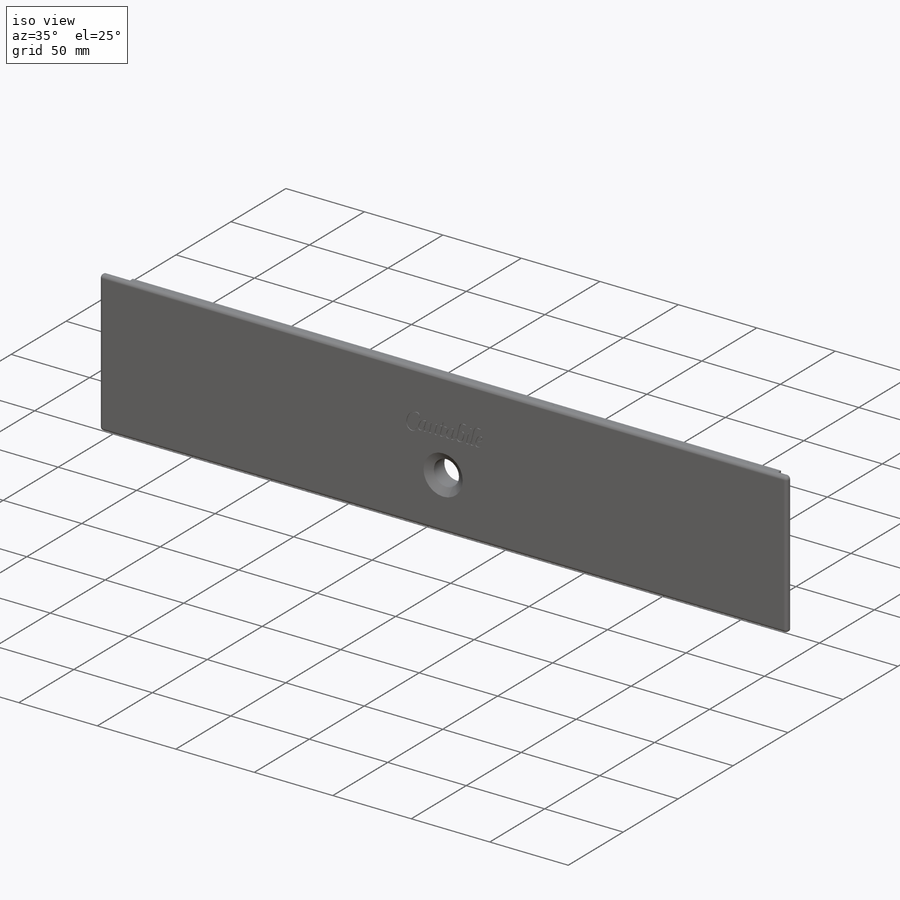
[diagram: iso view]
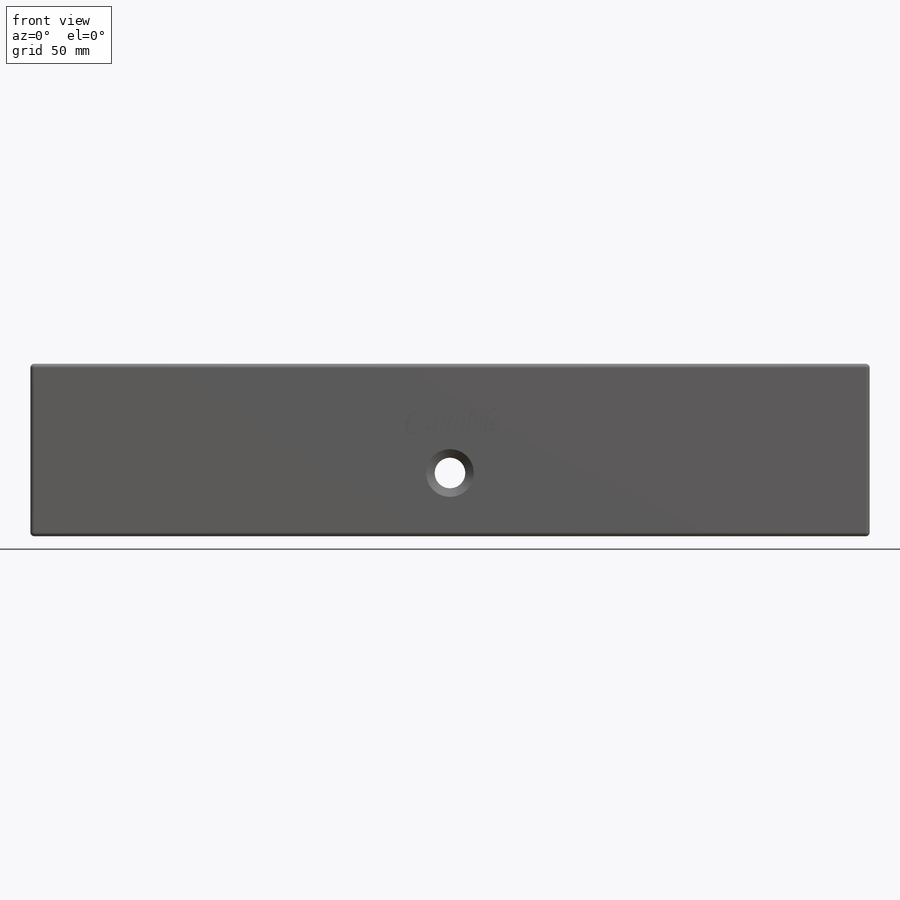
[diagram: front view]
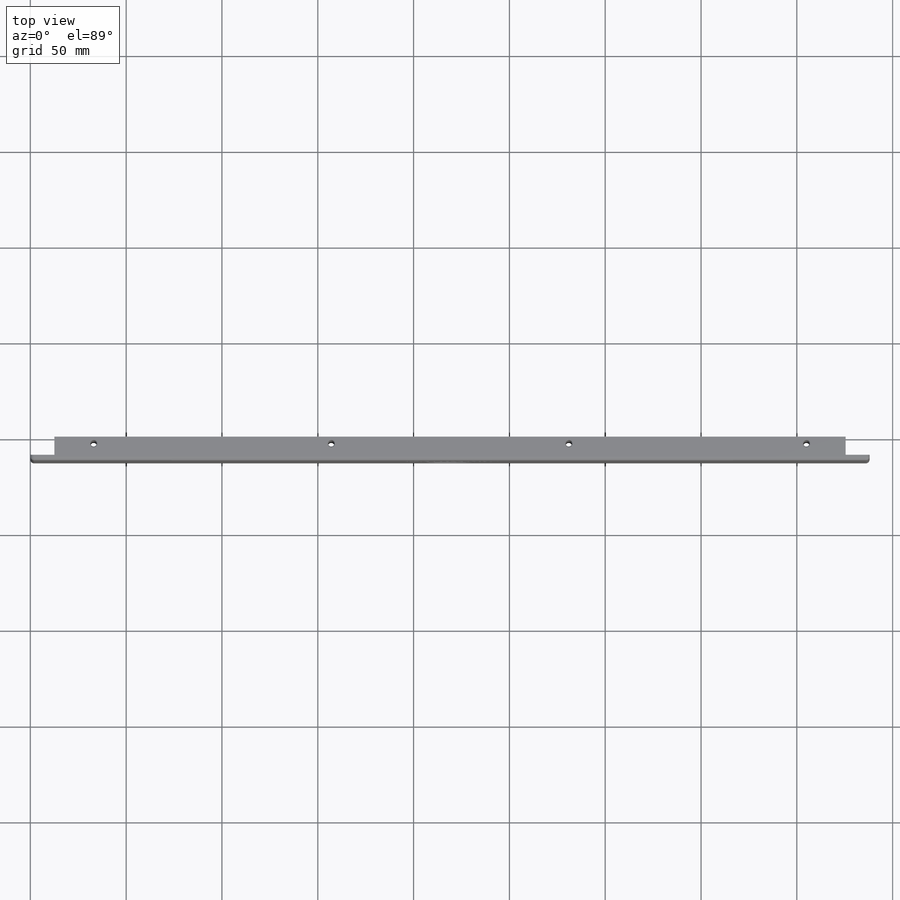
[diagram: top view]
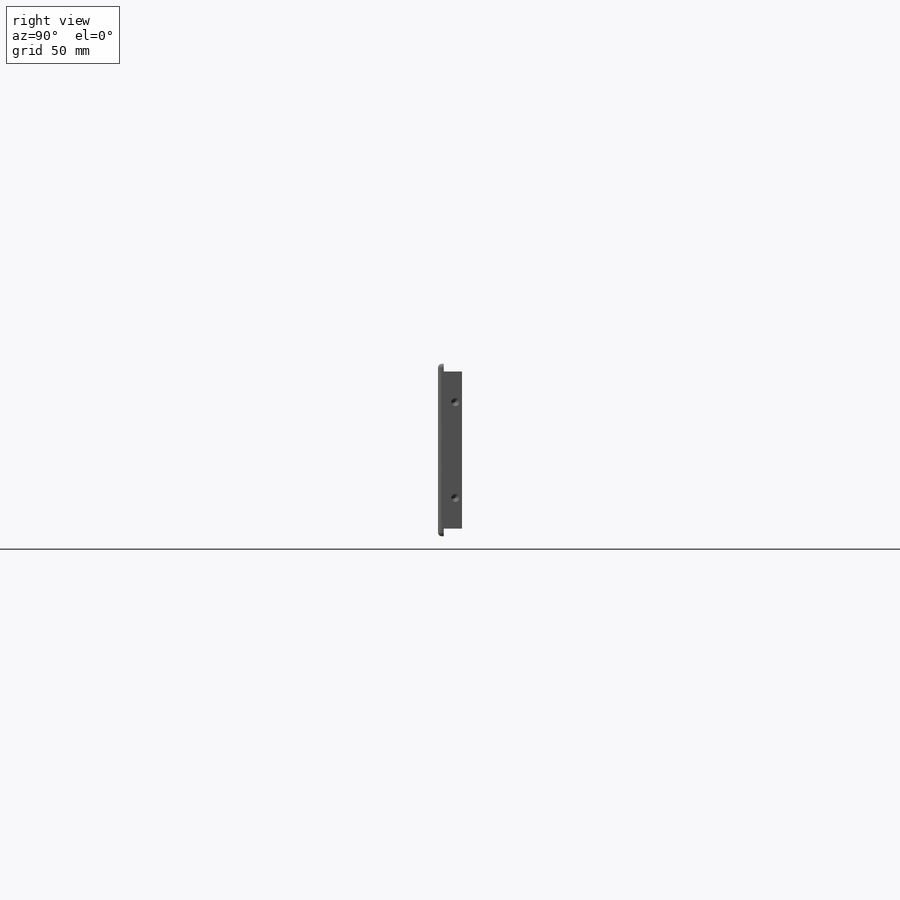
[diagram: right view]
SOLIDWORKS PART (.sldprt)
format: sldprt  version: not decoded by parser v0  size: 1,206,272 bytes
history: native  units: mm
features: sketch x12, thread x8, hole x4, plane x3, cut_extrude x3, fillet x2, material x1, extrude x1 (+8 scaffold rows collapsed)
feature tree (42):
  scaffold x8  (default folders/planes/origin — collapsed)
  material  "6061 合金"
  plane  "前基準面"
  plane  "上基準面"
  plane  "右基準面"
  sketch  "草圖1"  dims[D1=90.0mm D2=438.0mm]
  extrude  "填料-伸長1"  Depth=12.5mm
  sketch  "草圖2"  dims[c1.D1=50.0mm c1.D2=50.0mm c2.D2=90.0deg c3.D2=50.0mm c4.D2=90.0deg c5.D2=50.0mm c6.D2=90.0deg c7.D2=50.0mm c7.D1=25.0mm c8.D2=35.0mm]
  cut_extrude  "除料-伸長1"  Depth=0.5mm
  hole  "開關圓孔"  [1 undecoded]
  sketch  "草圖4"  dims[D1=33.0mm D2=219.0mm]
  sketch  "草圖3"  dims[hole-wizard template sketch: 54 standard entries collapsed; hole parameters kept: c17.貫穿孔直徑=16.0mm c17.貫穿孔深度=12.5mm c17.近端錐孔直徑=25.0mm c17.D4=~3.666174mm c17.近端錐孔角度=112.6deg]
  sketch  "草圖6"  dims[D1=3.0mm D2=3.0mm D3=4.0mm D4=4.0mm]
  sketch  "草圖5"  dims[D1=12.5mm D2=3.0mm D3=3.0mm D4=12.5mm]
  cut_extrude  "除料-伸長2"  [1 undecoded]
  cut_extrude  "除料-伸長3"  [1 undecoded]
  fillet  "圓角1"  Radius=2mm
  fillet  "圓角2"  Radius=2mm
  hole  "M4 螺紋孔1"  [1 undecoded]
  sketch  "草圖8"  dims[D1=20.5mm D2=124.0mm D3=124.0mm D4=124.0mm D5=6.0mm D6=20.0mm]
  thread  "鑽孔螺紋1"  Diameter=4mm  [1 undecoded]
  thread  "鑽孔螺紋2"  Diameter=4mm  [1 undecoded]
  thread  "鑽孔螺紋3"  Diameter=4mm  [1 undecoded]
  thread  "鑽孔螺紋4"  Diameter=4mm  [1 undecoded]
  sketch  "草圖7"  dims[hole-wizard template sketch: 54 standard entries collapsed; hole parameters kept: c17.貫穿螺孔鑽直徑=3.3mm c17.貫穿螺孔鑽深度=86.0mm c17.近端錐孔直徑=4.05mm c17.D4=~3.666174mm c17.近端錐孔角度=90.0deg]
  hole  "M4 螺紋孔2"  [1 undecoded]
  sketch  "草圖10"  dims[D1=16.0mm D2=16.0mm D3=6.0mm D4=5.0mm]
  sketch  "草圖9"  dims[hole-wizard template sketch: 39 standard entries collapsed; hole parameters kept: c13.螺孔鑽直徑=3.3mm c13.螺孔鑽深度=5.0mm c13.近端錐孔直徑=4.05mm c13.D4=~33.297463mm c13.近端錐孔角度=90.0deg c14.D5=~14.816244mm c14.導頭角度=118.0deg]
  thread  "鑽孔螺紋5"  Diameter=5mm  [1 undecoded]
  thread  "鑽孔螺紋6"  Diameter=5mm  [1 undecoded]
  hole  "M4 螺紋孔3"  [1 undecoded]
  sketch  "草圖12"  dims[D1=16.0mm D2=16.0mm D3=6.0mm]
  sketch  "草圖11"  dims[hole-wizard template sketch: 39 standard entries collapsed; hole parameters kept: c13.螺孔鑽直徑=3.3mm c13.螺孔鑽深度=5.0mm c13.近端錐孔直徑=4.05mm c13.D4=~33.297463mm c13.近端錐孔角度=90.0deg c14.D5=~14.816244mm c14.導頭角度=118.0deg]
  thread  "鑽孔螺紋7"  Diameter=4.3mm  [1 undecoded]
  thread  "鑽孔螺紋8"  Diameter=4.3mm  [1 undecoded]
decode coverage: 24 of 30 modeling features carry decoded parameters
note: ~ marks probable driven/reference dimensions
note: 14 parameter values undecoded
summary: no parameter record found for 6 features
note: suppression state not decoded; provenance and decode notes live in map.json
